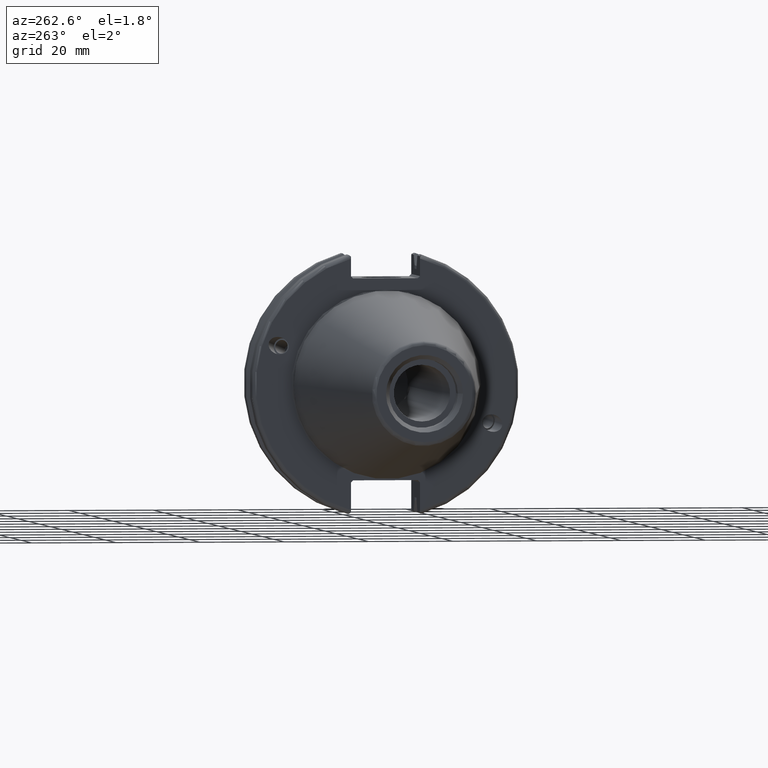
[diagram: clean part render]
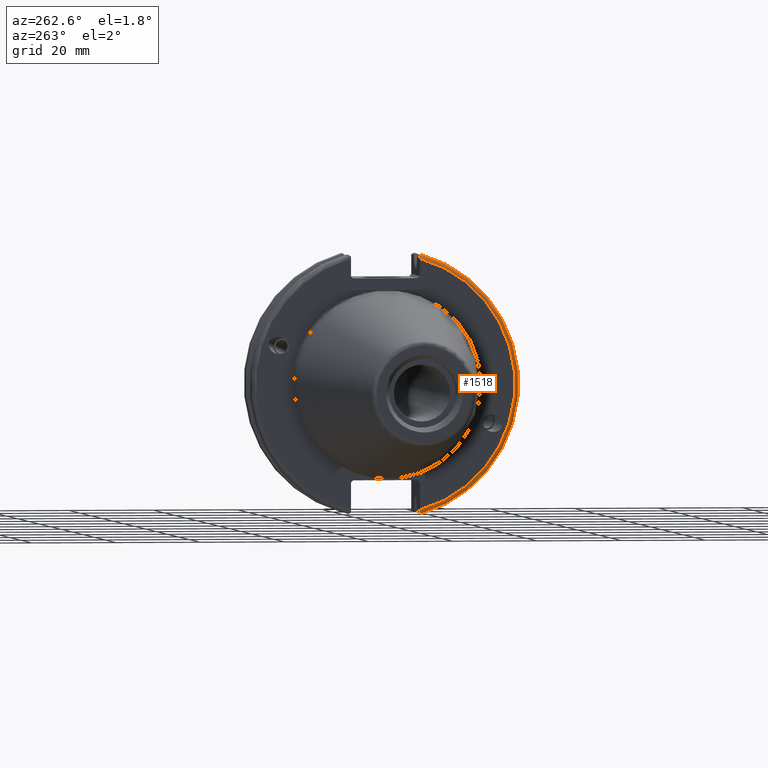
[diagram: same view with one face highlighted and labeled with its STEP entity id]
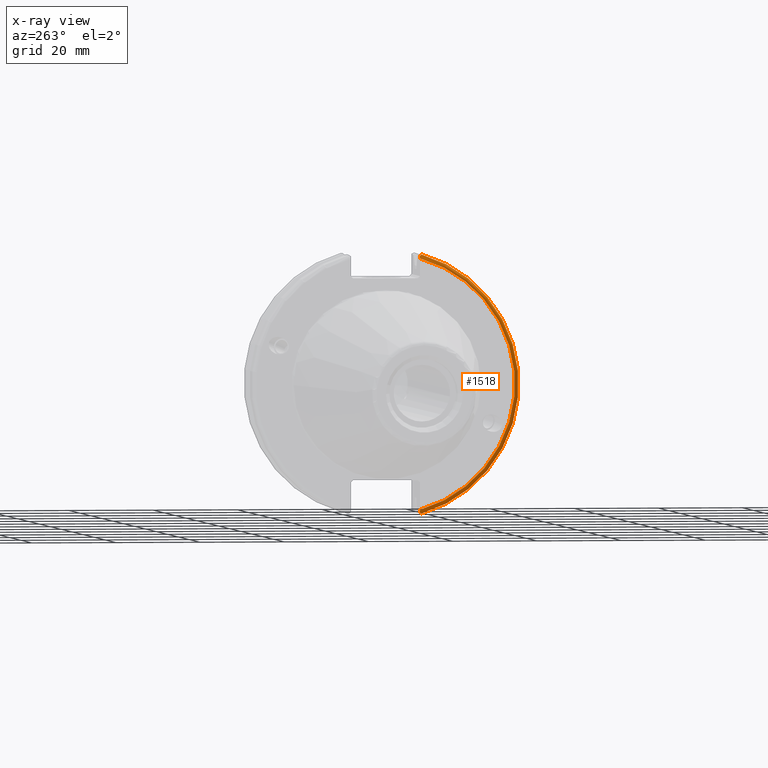
[diagram: x-ray of the same camera — body ghosted, the highlighted face saturated]
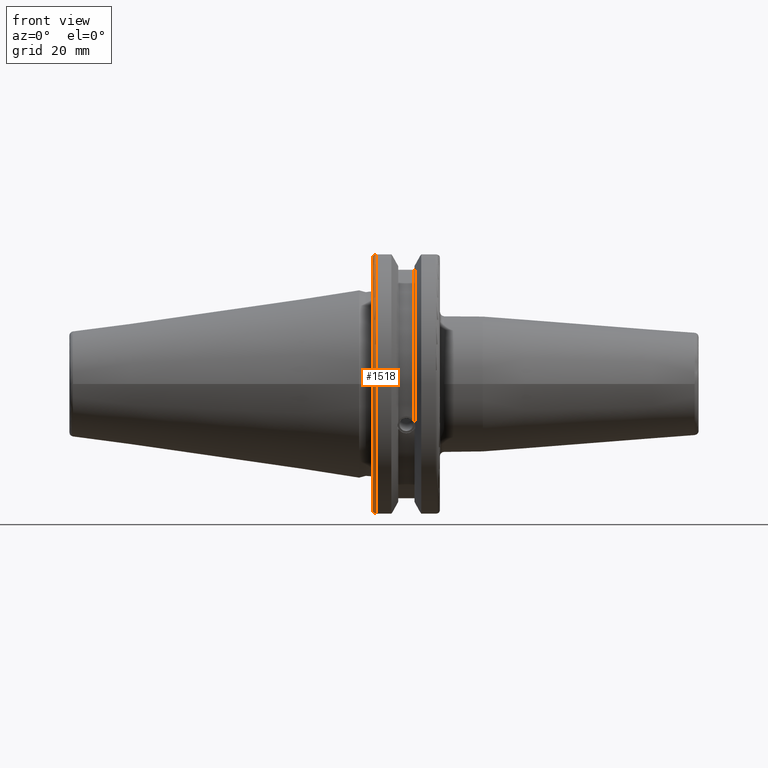
[diagram: same view with one face highlighted and labeled with its STEP entity id]
A machine part, auxiliary view. The second image highlights one B-rep face of the part: STEP entity #1518.
The next image is the same camera in x-ray: the body ghosted, the highlighted face saturated — about 0% of this face is hidden behind the body in this view.
A second angle (front view) of the same face is appended — the face is thin or edge-on in the first view.
In plain terms, the highlighted toroidal blend (fillet) surface has major radius 30.75 mm and minor (blend) radius 1 mm.
Its self-contained STEP definition (entity closure, byte-faithful):
#72=B_SPLINE_CURVE_WITH_KNOTS('',3,(#2794,#2795,#2796,#2797,#2798,#2799),
 .UNSPECIFIED.,.F.,.F.,(4,2,4),(0.0977210450333167,0.111963554372601,0.150804064902975),
 .UNSPECIFIED.);
#73=B_SPLINE_CURVE_WITH_KNOTS('',3,(#2820,#2821,#2822,#2823,#2824,#2825),
 .UNSPECIFIED.,.F.,.F.,(4,2,4),(0.452741154494498,0.491581665024872,0.505824174364157),
 .UNSPECIFIED.);
#74=B_SPLINE_CURVE_WITH_KNOTS('',3,(#2829,#2830,#2831,#2832,#2833,#2834,
#2835,#2836),.UNSPECIFIED.,.F.,.F.,(4,2,2,4),(-0.104180282751877,-0.0729784742461442,
-0.0343524753874977,0.),.UNSPECIFIED.);
#75=B_SPLINE_CURVE_WITH_KNOTS('',3,(#2839,#2840,#2841,#2842,#2843,#2844,
#2845,#2846),.UNSPECIFIED.,.F.,.F.,(4,2,2,4),(0.,0.0343524753874981,0.0729784742461436,
0.104180282751876),.UNSPECIFIED.);
#405=FACE_OUTER_BOUND('',#504,.T.);
#504=EDGE_LOOP('',(#1293,#1294,#1295,#1296,#1297,#1298));
#593=CIRCLE('',#1687,30.75);
#598=CIRCLE('',#1700,31.75);
#717=VERTEX_POINT('',#2674);
#718=VERTEX_POINT('',#2675);
#741=VERTEX_POINT('',#2793);
#747=VERTEX_POINT('',#2818);
#748=VERTEX_POINT('',#2828);
#749=VERTEX_POINT('',#2837);
#904=EDGE_CURVE('',#717,#718,#593,.T.);
#936=EDGE_CURVE('',#741,#717,#72,.T.);
#946=EDGE_CURVE('',#718,#747,#73,.T.);
#948=EDGE_CURVE('',#747,#748,#74,.T.);
#949=EDGE_CURVE('',#748,#749,#598,.T.);
#950=EDGE_CURVE('',#749,#741,#75,.T.);
#1293=ORIENTED_EDGE('',*,*,#948,.T.);
#1294=ORIENTED_EDGE('',*,*,#949,.T.);
#1295=ORIENTED_EDGE('',*,*,#950,.T.);
#1296=ORIENTED_EDGE('',*,*,#936,.T.);
#1297=ORIENTED_EDGE('',*,*,#904,.T.);
#1298=ORIENTED_EDGE('',*,*,#946,.T.);
#1466=TOROIDAL_SURFACE('',#1699,30.75,1.);
#1518=ADVANCED_FACE('',(#405),#1466,.T.);
#1687=AXIS2_PLACEMENT_3D('',#2676,#2021,#2022);
#1699=AXIS2_PLACEMENT_3D('',#2827,#2069,#2070);
#1700=AXIS2_PLACEMENT_3D('',#2838,#2071,#2072);
#2021=DIRECTION('center_axis',(1.,0.,0.));
#2022=DIRECTION('ref_axis',(0.,-1.,1.60812264967664E-16));
#2069=DIRECTION('center_axis',(1.,0.,0.));
#2070=DIRECTION('ref_axis',(0.,0.,-1.));
#2071=DIRECTION('center_axis',(-1.,0.,0.));
#2072=DIRECTION('ref_axis',(0.,-1.,1.60812264967664E-16));
#2674=CARTESIAN_POINT('',(3.175,-8.18999999999999,29.6392712461019));
#2675=CARTESIAN_POINT('',(3.175,-8.19,-29.6392712461019));
#2676=CARTESIAN_POINT('Origin',(3.175,0.,0.));
#2793=CARTESIAN_POINT('',(3.31912772509028,-8.19,30.1755016258903));
#2794=CARTESIAN_POINT('Ctrl Pts',(3.31912772509028,-8.19,30.1755016258903));
#2795=CARTESIAN_POINT('Ctrl Pts',(3.29318362718666,-8.19,30.131014531546));
#2796=CARTESIAN_POINT('Ctrl Pts',(3.27103565282437,-8.19,30.0852355256475));
#2797=CARTESIAN_POINT('Ctrl Pts',(3.20451443291695,-8.19,29.9212724384851));
#2798=CARTESIAN_POINT('Ctrl Pts',(3.175,-8.19,29.7687396145364));
#2799=CARTESIAN_POINT('Ctrl Pts',(3.175,-8.19,29.6392712461019));
#2818=CARTESIAN_POINT('',(3.31912772509028,-8.19,-30.1755016258903));
#2820=CARTESIAN_POINT('Ctrl Pts',(3.175,-8.19,-29.6392712461018));
#2821=CARTESIAN_POINT('Ctrl Pts',(3.175,-8.19,-29.7687396145364));
#2822=CARTESIAN_POINT('Ctrl Pts',(3.20451443291695,-8.19,-29.9212724384851));
#2823=CARTESIAN_POINT('Ctrl Pts',(3.27103565282437,-8.19,-30.0852355256475));
#2824=CARTESIAN_POINT('Ctrl Pts',(3.29318362718666,-8.19,-30.131014531546));
#2825=CARTESIAN_POINT('Ctrl Pts',(3.31912772509028,-8.19,-30.1755016258903));
#2827=CARTESIAN_POINT('Origin',(4.175,0.,0.));
#2828=CARTESIAN_POINT('',(4.175,-8.67204822802685,-30.5427254764662));
#2829=CARTESIAN_POINT('Ctrl Pts',(3.31912772509028,-8.19,-30.1755016258903));
#2830=CARTESIAN_POINT('Ctrl Pts',(3.36755369570113,-8.27036828330781,-30.2367261024977));
#2831=CARTESIAN_POINT('Ctrl Pts',(3.43232973376814,-8.34909446036477,-30.2966996242308));
#2832=CARTESIAN_POINT('Ctrl Pts',(3.58532758094931,-8.48862804755884,-30.4029961692546));
#2833=CARTESIAN_POINT('Ctrl Pts',(3.70655857052286,-8.56482138642532,-30.4610401774263));
#2834=CARTESIAN_POINT('Ctrl Pts',(3.92668295662254,-8.6471881193939,-30.5237870709558));
#2835=CARTESIAN_POINT('Ctrl Pts',(4.06049174870834,-8.67204822802686,-30.5427254764662));
#2836=CARTESIAN_POINT('Ctrl Pts',(4.175,-8.67204822802686,-30.5427254764662));
#2837=CARTESIAN_POINT('',(4.175,-8.67204822802685,30.5427254764662));
#2838=CARTESIAN_POINT('Origin',(4.175,0.,0.));
#2839=CARTESIAN_POINT('Ctrl Pts',(4.175,-8.67204822802686,30.5427254764662));
#2840=CARTESIAN_POINT('Ctrl Pts',(4.06049174870834,-8.67204822802686,30.5427254764662));
#2841=CARTESIAN_POINT('Ctrl Pts',(3.92668295662254,-8.64718811939389,30.5237870709558));
#2842=CARTESIAN_POINT('Ctrl Pts',(3.70655857052286,-8.56482138642532,30.4610401774263));
#2843=CARTESIAN_POINT('Ctrl Pts',(3.58532758094931,-8.48862804755884,30.4029961692546));
#2844=CARTESIAN_POINT('Ctrl Pts',(3.43232973376814,-8.34909446036478,30.2966996242308));
#2845=CARTESIAN_POINT('Ctrl Pts',(3.36755369570113,-8.2703682833078,30.2367261024977));
#2846=CARTESIAN_POINT('Ctrl Pts',(3.31912772509028,-8.19,30.1755016258903));